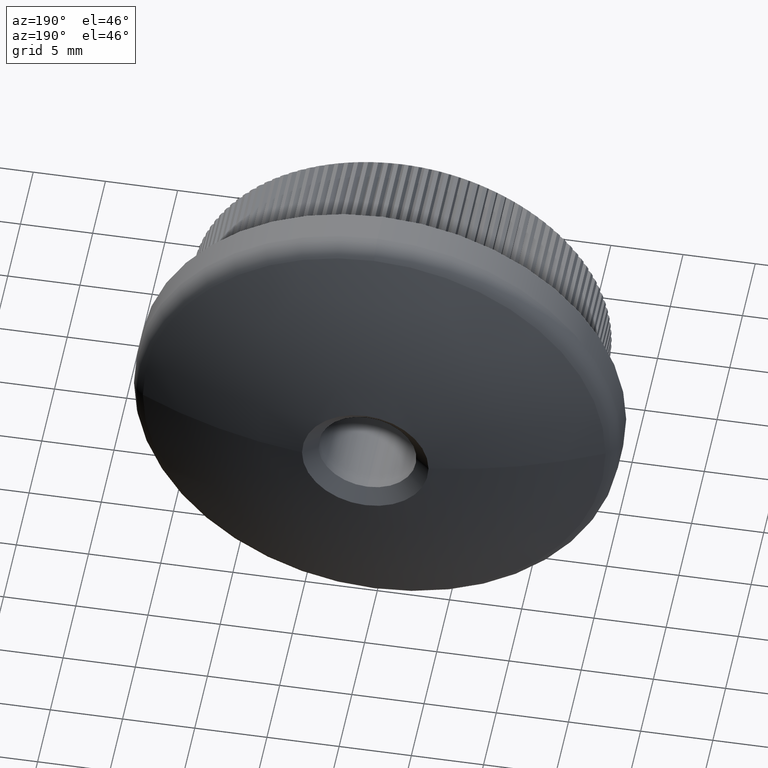
[diagram: clean part render]
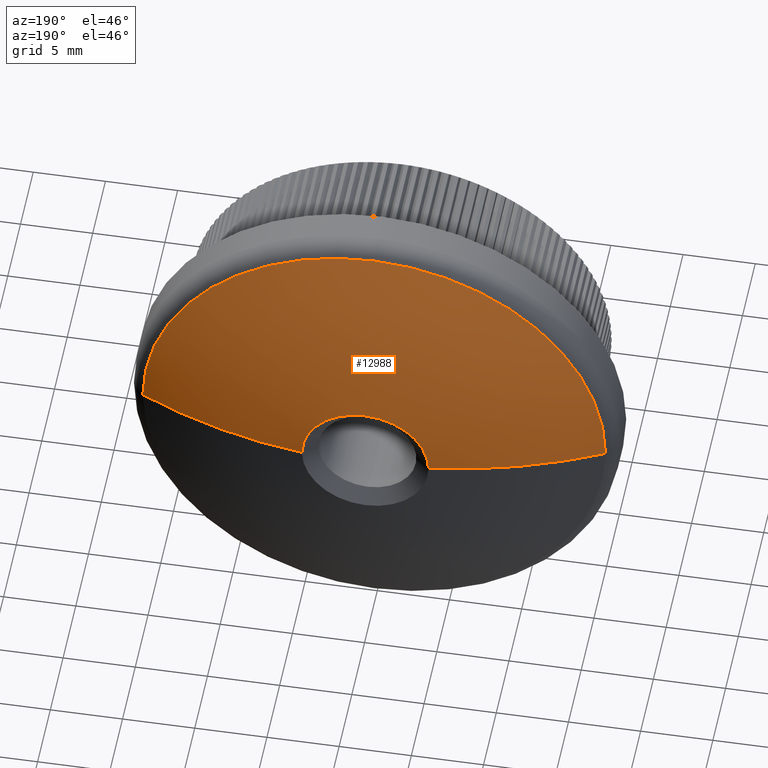
[diagram: same view with one face highlighted and labeled with its STEP entity id]
A machine part, auxiliary view. The second image highlights one B-rep face of the part: STEP entity #12988.
In plain terms, the highlighted spherical surface has radius 35.9003 mm.
Its self-contained STEP definition (entity closure, byte-faithful):
#158 = DIRECTION ( 'NONE',  ( 0.0000000000000000000, 0.0000000000000000000, -1.000000000000000000 ) ) ;
#527 = ORIENTED_EDGE ( 'NONE', *, *, #4711, .F. ) ;
#1126 = ORIENTED_EDGE ( 'NONE', *, *, #9158, .T. ) ;
#1188 = DIRECTION ( 'NONE',  ( 1.000000000000000000, 0.0000000000000000000, -1.224646799147353200E-016 ) ) ;
#1483 = EDGE_CURVE ( 'NONE', #10038, #9629, #1698, .T. ) ;
#1698 = CIRCLE ( 'NONE', #18535, 4.380727386532452500 ) ;
#2178 = ORIENTED_EDGE ( 'NONE', *, *, #24656, .T. ) ;
#2379 = CARTESIAN_POINT ( 'NONE',  ( 0.0000000000000000000, -20.90029761904771300, 0.0000000000000000000 ) ) ;
#3118 = DIRECTION ( 'NONE',  ( 0.0000000000000000000, 0.0000000000000000000, 1.000000000000000000 ) ) ;
#3141 = EDGE_CURVE ( 'NONE', #19355, #18235, #3882, .T. ) ;
#3882 = CIRCLE ( 'NONE', #10469, 16.01932560453346000 ) ;
#4022 = EDGE_LOOP ( 'NONE', ( #8513, #1126, #4456, #14002, #2178, #527 ) ) ;
#4177 = AXIS2_PLACEMENT_3D ( 'NONE', #20072, #20162, #14253 ) ;
#4251 = DIRECTION ( 'NONE',  ( 0.0000000000000000000, 0.0000000000000000000, -1.000000000000000000 ) ) ;
#4286 = AXIS2_PLACEMENT_3D ( 'NONE', #2379, #4251, #10188 ) ;
#4317 = AXIS2_PLACEMENT_3D ( 'NONE', #22934, #20978, #19373 ) ;
#4456 = ORIENTED_EDGE ( 'NONE', *, *, #25129, .T. ) ;
#4711 = EDGE_CURVE ( 'NONE', #10038, #18033, #13129, .T. ) ;
#5312 = DIRECTION ( 'NONE',  ( 0.0000000000000000000, 0.0000000000000000000, -1.000000000000000000 ) ) ;
#7010 = CIRCLE ( 'NONE', #4317, 16.01932560453346000 ) ;
#7073 = AXIS2_PLACEMENT_3D ( 'NONE', #13468, #21981, #1188 ) ;
#8222 = CARTESIAN_POINT ( 'NONE',  ( 0.0000000000000000000, 11.22776762478764600, 0.0000000000000000000 ) ) ;
#8513 = ORIENTED_EDGE ( 'NONE', *, *, #1483, .T. ) ;
#9158 = EDGE_CURVE ( 'NONE', #9629, #11349, #20129, .T. ) ;
#9188 = CARTESIAN_POINT ( 'NONE',  ( 2.012665719586202600E-015, 11.22776762478764600, 16.01932560453346000 ) ) ;
#9629 = VERTEX_POINT ( 'NONE', #25932 ) ;
#10003 = CARTESIAN_POINT ( 'NONE',  ( 16.01932560453345300, 11.22776762478764600, 0.0000000000000000000 ) ) ;
#10038 = VERTEX_POINT ( 'NONE', #15193 ) ;
#10188 = DIRECTION ( 'NONE',  ( -1.000000000000000000, 0.0000000000000000000, 0.0000000000000000000 ) ) ;
#10469 = AXIS2_PLACEMENT_3D ( 'NONE', #8222, #24686, #158 ) ;
#11349 = VERTEX_POINT ( 'NONE', #21685 ) ;
#12988 = ADVANCED_FACE ( 'NONE', ( #22253 ), #16816, .T. ) ;
#13129 = CIRCLE ( 'NONE', #4286, 35.90029761904770600 ) ;
#13168 = CARTESIAN_POINT ( 'NONE',  ( -16.01932560453345300, 11.22776762478764600, 1.961801582609113400E-015 ) ) ;
#13468 = CARTESIAN_POINT ( 'NONE',  ( 0.0000000000000000000, -20.90029761904771300, 0.0000000000000000000 ) ) ;
#14002 = ORIENTED_EDGE ( 'NONE', *, *, #3141, .T. ) ;
#14253 = DIRECTION ( 'NONE',  ( 0.0000000000000000000, 0.0000000000000000000, -1.000000000000000000 ) ) ;
#15193 = CARTESIAN_POINT ( 'NONE',  ( 4.380727386532452500, 14.73171883667769000, 0.0000000000000000000 ) ) ;
#16624 = CIRCLE ( 'NONE', #7073, 35.90029761904770600 ) ;
#16816 = SPHERICAL_SURFACE ( 'NONE', #19203, 35.90029761904770600 ) ;
#18033 = VERTEX_POINT ( 'NONE', #10003 ) ;
#18235 = VERTEX_POINT ( 'NONE', #9188 ) ;
#18535 = AXIS2_PLACEMENT_3D ( 'NONE', #25993, #25814, #5312 ) ;
#19203 = AXIS2_PLACEMENT_3D ( 'NONE', #19633, #3118, #19548 ) ;
#19355 = VERTEX_POINT ( 'NONE', #13168 ) ;
#19373 = DIRECTION ( 'NONE',  ( 0.0000000000000000000, 0.0000000000000000000, -1.000000000000000000 ) ) ;
#19548 = DIRECTION ( 'NONE',  ( 1.000000000000000000, 0.0000000000000000000, 0.0000000000000000000 ) ) ;
#19633 = CARTESIAN_POINT ( 'NONE',  ( 0.0000000000000000000, -20.90029761904771300, 0.0000000000000000000 ) ) ;
#20072 = CARTESIAN_POINT ( 'NONE',  ( 0.0000000000000000000, 14.73171883667769000, 0.0000000000000000000 ) ) ;
#20129 = CIRCLE ( 'NONE', #4177, 4.380727386532452500 ) ;
#20162 = DIRECTION ( 'NONE',  ( -0.0000000000000000000, -1.000000000000000000, -0.0000000000000000000 ) ) ;
#20978 = DIRECTION ( 'NONE',  ( 0.0000000000000000000, 1.000000000000000000, 0.0000000000000000000 ) ) ;
#21685 = CARTESIAN_POINT ( 'NONE',  ( -4.380727386532452500, 14.73171883667769000, 1.249142979897262600E-015 ) ) ;
#21981 = DIRECTION ( 'NONE',  ( 1.224646799147353200E-016, -0.0000000000000000000, 1.000000000000000000 ) ) ;
#22253 = FACE_OUTER_BOUND ( 'NONE', #4022, .T. ) ;
#22934 = CARTESIAN_POINT ( 'NONE',  ( 0.0000000000000000000, 11.22776762478764600, 0.0000000000000000000 ) ) ;
#24656 = EDGE_CURVE ( 'NONE', #18235, #18033, #7010, .T. ) ;
#24686 = DIRECTION ( 'NONE',  ( 0.0000000000000000000, 1.000000000000000000, 0.0000000000000000000 ) ) ;
#25129 = EDGE_CURVE ( 'NONE', #11349, #19355, #16624, .T. ) ;
#25814 = DIRECTION ( 'NONE',  ( -0.0000000000000000000, -1.000000000000000000, -0.0000000000000000000 ) ) ;
#25932 = CARTESIAN_POINT ( 'NONE',  ( 0.0000000000000000000, 14.73171883667769000, 4.380727386532436500 ) ) ;
#25993 = CARTESIAN_POINT ( 'NONE',  ( 0.0000000000000000000, 14.73171883667769000, 0.0000000000000000000 ) ) ;